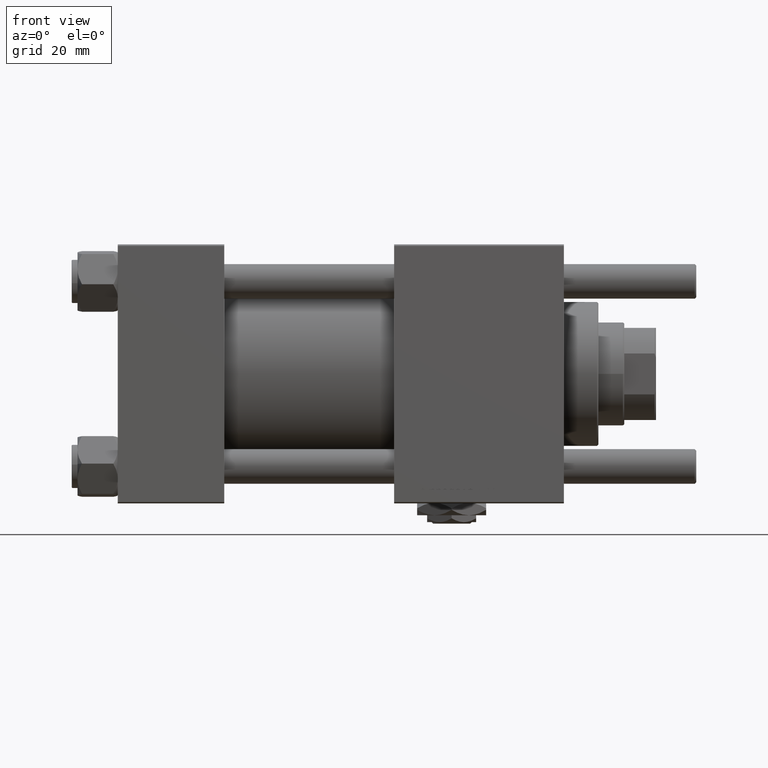
[diagram: clean part render]
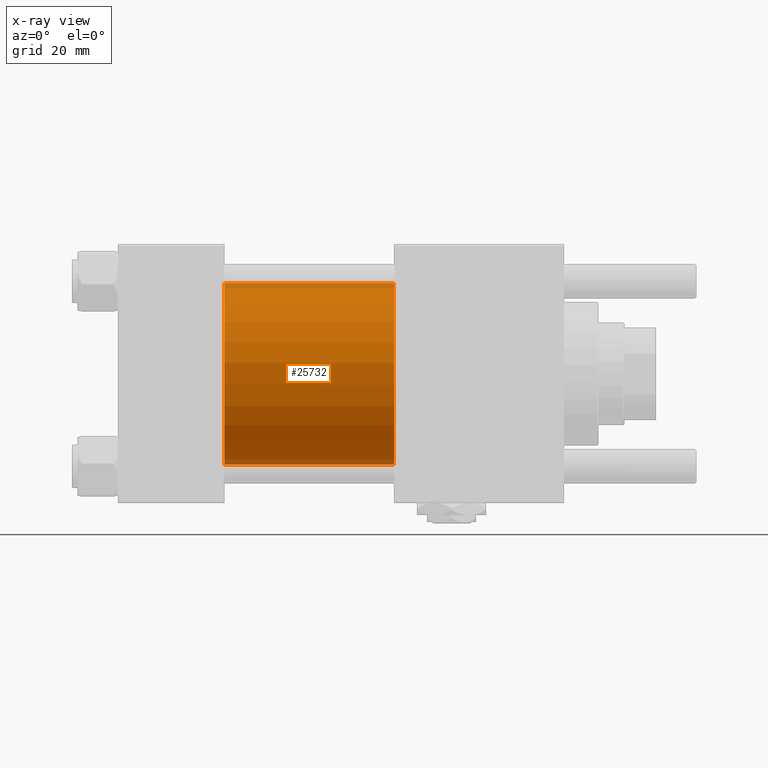
[diagram: x-ray — body ghosted, one internal face saturated and labeled with its STEP entity id]
A machine part, front view, then the same camera in x-ray: the body is ghosted and one INTERNAL B-rep face — a face not visible from any outside direction — is saturated and labeled: STEP entity #25732.
In plain terms, the highlighted cylindrical surface (partial cylindrical patch) has radius 31.5 mm, axis along (-1, -0, -0).
Its self-contained STEP definition (entity closure, byte-faithful):
#340 = CIRCLE ( 'NONE', #20117, 31.50000000000000000 ) ;
#2014 = AXIS2_PLACEMENT_3D ( 'NONE', #9868, #40594, #13986 ) ;
#5507 = CARTESIAN_POINT ( 'NONE',  ( 96.00000000000000000, 1.255552203348951850E-15, -31.50000000000000000 ) ) ;
#5530 = LINE ( 'NONE', #40687, #54111 ) ;
#7210 = DIRECTION ( 'NONE',  ( 0.000000000000000000, 0.000000000000000000, -1.000000000000000000 ) ) ;
#8566 = DIRECTION ( 'NONE',  ( 0.000000000000000000, 0.000000000000000000, -1.000000000000000000 ) ) ;
#9028 = ORIENTED_EDGE ( 'NONE', *, *, #26317, .F. ) ;
#9460 = DIRECTION ( 'NONE',  ( -1.000000000000000000, -0.000000000000000000, -0.000000000000000000 ) ) ;
#9868 = CARTESIAN_POINT ( 'NONE',  ( 96.00000000000000000, -2.602085213965210642E-15, 0.000000000000000000 ) ) ;
#11344 = CIRCLE ( 'NONE', #16069, 31.50000000000000000 ) ;
#11940 = VERTEX_POINT ( 'NONE', #47527 ) ;
#13986 = DIRECTION ( 'NONE',  ( 0.000000000000000000, 0.000000000000000000, 1.000000000000000000 ) ) ;
#14021 = EDGE_LOOP ( 'NONE', ( #25199, #42814, #47788, #9028 ) ) ;
#14068 = CARTESIAN_POINT ( 'NONE',  ( 37.00000000000000000, 1.255552203348951850E-15, -31.50000000000000000 ) ) ;
#16069 = AXIS2_PLACEMENT_3D ( 'NONE', #31004, #53213, #8566 ) ;
#20117 = AXIS2_PLACEMENT_3D ( 'NONE', #39109, #56857, #7210 ) ;
#20828 = CARTESIAN_POINT ( 'NONE',  ( 96.00000000000000000, -2.602085213965210642E-15, 31.50000000000000000 ) ) ;
#21027 = LINE ( 'NONE', #39054, #28496 ) ;
#21057 = EDGE_CURVE ( 'NONE', #11940, #57613, #11344, .T. ) ;
#25199 = ORIENTED_EDGE ( 'NONE', *, *, #29849, .T. ) ;
#25514 = VERTEX_POINT ( 'NONE', #5507 ) ;
#25732 = ADVANCED_FACE ( 'NONE', ( #50653 ), #45328, .F. ) ;
#26317 = EDGE_CURVE ( 'NONE', #28002, #11940, #21027, .T. ) ;
#28002 = VERTEX_POINT ( 'NONE', #20828 ) ;
#28496 = VECTOR ( 'NONE', #9460, 1000.000000000000000 ) ;
#29849 = EDGE_CURVE ( 'NONE', #28002, #25514, #340, .T. ) ;
#31004 = CARTESIAN_POINT ( 'NONE',  ( 37.00000000000000000, -2.602085213965210642E-15, 0.000000000000000000 ) ) ;
#35960 = DIRECTION ( 'NONE',  ( -1.000000000000000000, -0.000000000000000000, -0.000000000000000000 ) ) ;
#39054 = CARTESIAN_POINT ( 'NONE',  ( 96.00000000000000000, -2.602085213965210642E-15, 31.50000000000000000 ) ) ;
#39109 = CARTESIAN_POINT ( 'NONE',  ( 96.00000000000000000, -2.602085213965210642E-15, 0.000000000000000000 ) ) ;
#40594 = DIRECTION ( 'NONE',  ( -1.000000000000000000, -0.000000000000000000, -0.000000000000000000 ) ) ;
#40687 = CARTESIAN_POINT ( 'NONE',  ( 96.00000000000000000, 1.255552203348951850E-15, -31.50000000000000000 ) ) ;
#42814 = ORIENTED_EDGE ( 'NONE', *, *, #50029, .T. ) ;
#45328 = CYLINDRICAL_SURFACE ( 'NONE', #2014, 31.50000000000000000 ) ;
#47527 = CARTESIAN_POINT ( 'NONE',  ( 37.00000000000000000, -2.602085213965210642E-15, 31.50000000000000000 ) ) ;
#47788 = ORIENTED_EDGE ( 'NONE', *, *, #21057, .F. ) ;
#50029 = EDGE_CURVE ( 'NONE', #25514, #57613, #5530, .T. ) ;
#50653 = FACE_OUTER_BOUND ( 'NONE', #14021, .T. ) ;
#53213 = DIRECTION ( 'NONE',  ( 1.000000000000000000, 0.000000000000000000, 0.000000000000000000 ) ) ;
#54111 = VECTOR ( 'NONE', #35960, 1000.000000000000000 ) ;
#56857 = DIRECTION ( 'NONE',  ( 1.000000000000000000, 0.000000000000000000, 0.000000000000000000 ) ) ;
#57613 = VERTEX_POINT ( 'NONE', #14068 ) ;